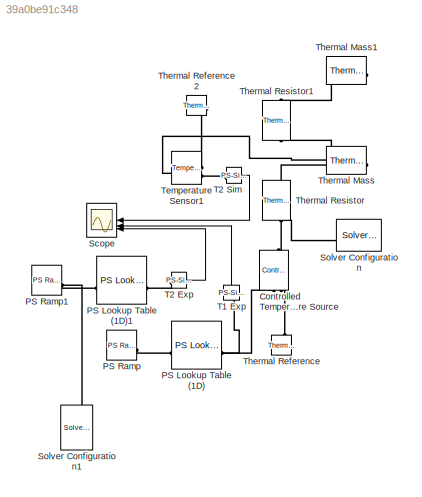
MODEL slx_39a0be91c348
KIND model
CONFIG AbsTol = auto
CONFIG EnableMultiTasking = off
CONFIG FixedStep = auto
CONFIG MaxStep = auto
CONFIG MinStep = auto
CONFIG RelTol = 1e-3
CONFIG SampleTimeConstraint = Unconstrained
CONFIG SolverName = VariableStepAuto
CONFIG StartTime = 0.0
CONFIG StopTime = timeEnd
BLOCK [Reference] Controlled Temperature Source  REF=fl_lib/Thermal/Thermal Sources/Controlled
Temperature Source
  NameLocation = right
  SourceBlock = fl_lib/Thermal/Thermal Sources/Controlled\nTemperature Source
  SourceType = Controlled\nTemperature Source
BLOCK [Reference] PS Lookup Table (1D)  REF=fl_lib/Physical Signals/Lookup Tables/PS Lookup Table (1D)
  SourceBlock = fl_lib/Physical Signals/Lookup Tables/PS Lookup Table (1D)
  SourceType = PS Lookup Table (1D)
BLOCK [Reference] PS Lookup Table (1D)1  REF=fl_lib/Physical Signals/Lookup Tables/PS Lookup Table (1D)
  SourceBlock = fl_lib/Physical Signals/Lookup Tables/PS Lookup Table (1D)
  SourceType = PS Lookup Table (1D)
BLOCK [Reference] PS Ramp  REF=fl_lib/Physical Signals/Sources/PS Ramp
  SourceBlock = fl_lib/Physical Signals/Sources/PS Ramp
  SourceType = PS Ramp
BLOCK [Reference] PS Ramp1  REF=fl_lib/Physical Signals/Sources/PS Ramp
  SourceBlock = fl_lib/Physical Signals/Sources/PS Ramp
  SourceType = PS Ramp
BLOCK [Scope] Scope
  Floating = off
  NameLocation = top
  NumInputPorts = 3
  ScopeSpecificationString = Simulink.scopes.TimeScopeBlockCfg('CurrentConfiguration', extmgr.ConfigurationSet(extmgr.Configuration('Core','General UI',true),extmgr.Configuration('Core','Source UI',true),extmgr.Configuration('Sources','WiredSimulink',true),extmgr.Configuration('Visuals','Time Domain',true,'SerializedDisplays',{struct('MinYLimReal','24.76808','MaxYLimReal','52.59079','YLabelReal','','MinYLimMag','24.76808','Ma...<+1427ch>
BLOCK [Reference] Solver Configuration  REF=nesl_utility/Solver
Configuration
  NameLocation = top
  SourceBlock = nesl_utility/Solver\nConfiguration
  SourceType = Solver\nConfiguration
BLOCK [Reference] Solver Configuration1  REF=nesl_utility/Solver
Configuration
  NameLocation = right
  SourceBlock = nesl_utility/Solver\nConfiguration
  SourceType = Solver\nConfiguration
BLOCK [Reference] T1 Exp  REF=nesl_utility/PS-Simulink
Converter
  NameLocation = right
  SourceBlock = nesl_utility/PS-Simulink\nConverter
  SourceType = PS-Simulink\nConverter
BLOCK [Reference] T2 Exp  REF=nesl_utility/PS-Simulink
Converter
  SourceBlock = nesl_utility/PS-Simulink\nConverter
  SourceType = PS-Simulink\nConverter
BLOCK [Reference] T2 Sim  REF=nesl_utility/PS-Simulink
Converter
  SourceBlock = nesl_utility/PS-Simulink\nConverter
  SourceType = PS-Simulink\nConverter
BLOCK [Reference] Temperature Sensor1  REF=fl_lib/Thermal/Thermal Sensors/Temperature Sensor
  SourceBlock = fl_lib/Thermal/Thermal Sensors/Temperature Sensor
  SourceType = Temperature Sensor
BLOCK [Reference] Thermal Mass  REF=fl_lib/Thermal/Thermal Elements/Thermal Mass
  NameLocation = top
  SourceBlock = fl_lib/Thermal/Thermal Elements/Thermal Mass
  SourceType = Thermal Mass
BLOCK [Reference] Thermal Mass1  REF=fl_lib/Thermal/Thermal Elements/Thermal Mass
  NameLocation = top
  SourceBlock = fl_lib/Thermal/Thermal Elements/Thermal Mass
  SourceType = Thermal Mass
BLOCK [Reference] Thermal Reference  REF=fl_lib/Thermal/Thermal Elements/Thermal Reference
  NameLocation = right
  SourceBlock = fl_lib/Thermal/Thermal Elements/Thermal Reference
  SourceType = Thermal Reference
BLOCK [Reference] Thermal Reference2  REF=fl_lib/Thermal/Thermal Elements/Thermal Reference
  SourceBlock = fl_lib/Thermal/Thermal Elements/Thermal Reference
  SourceType = Thermal Reference
BLOCK [Reference] Thermal Resistor  REF=ee_lib/Passive/Thermal/Thermal Resistor
  NameLocation = right
  SourceBlock = ee_lib/Passive/Thermal/Thermal Resistor
  SourceType = Thermal Resistor
BLOCK [Reference] Thermal Resistor1  REF=ee_lib/Passive/Thermal/Thermal Resistor
  NameLocation = right
  SourceBlock = ee_lib/Passive/Thermal/Thermal Resistor
  SourceType = Thermal Resistor
LINE T1 Exp:1 -> Scope:2
LINE T2 Exp:1 -> Scope:3
LINE T2 Sim:1 -> Scope:1
PNET net1: Controlled Temperature Source:LConn1 -- Solver Configuration:RConn1 -- Thermal Resistor:LConn1
PNET net2: Controlled Temperature Source:RConn1 -- PS Lookup Table (1D):RConn1 -- T1 Exp:LConn1
PLINE Controlled Temperature Source:RConn2 -- Thermal Reference:LConn1
PNET net3: PS Lookup Table (1D)1:LConn1 -- PS Ramp1:RConn1 -- Solver Configuration1:RConn1
PLINE PS Lookup Table (1D)1:RConn1 -- T2 Exp:LConn1
PLINE PS Lookup Table (1D):LConn1 -- PS Ramp:RConn1
PLINE T2 Sim:LConn1 -- Temperature Sensor1:RConn2
PNET net4: Temperature Sensor1:LConn1 -- Thermal Mass:LConn1 -- Thermal Resistor1:LConn1 -- Thermal Resistor:RConn1
PLINE Temperature Sensor1:RConn1 -- Thermal Reference2:LConn1
PLINE Thermal Mass1:LConn1 -- Thermal Resistor1:RConn1
note: PNET lines group multi-terminal physical nets as a canonical sorted terminal list (undirected conserving connections); 2-terminal nets keep the pairwise PLINE form
